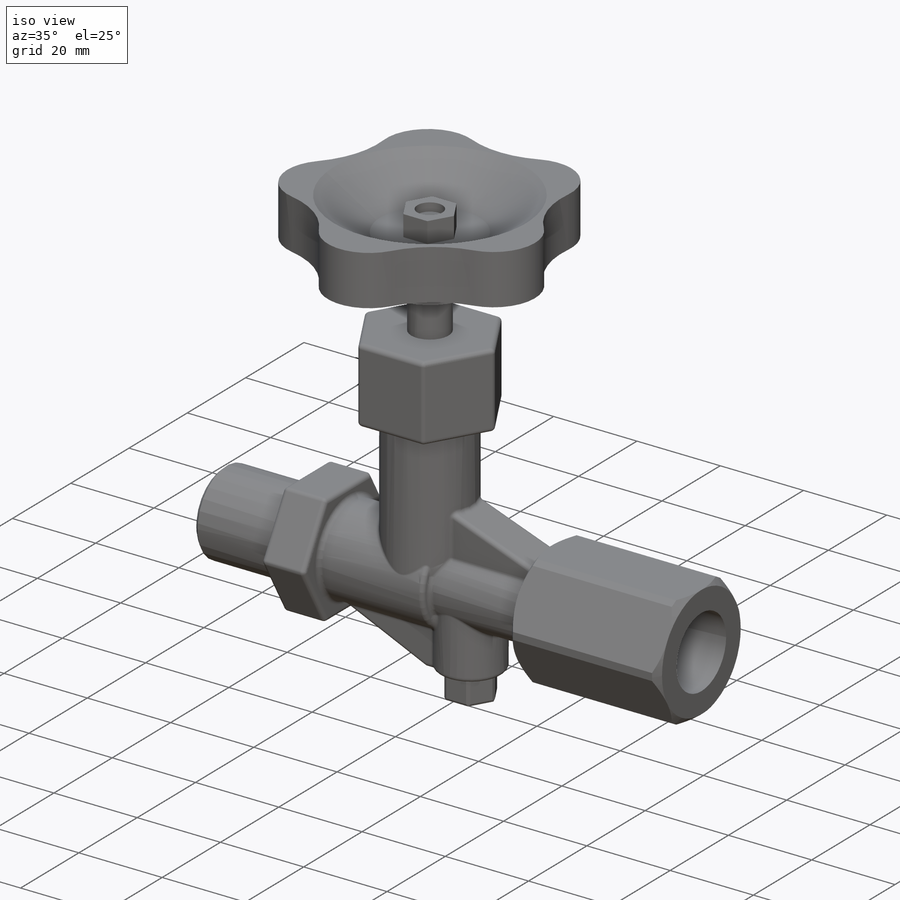
[diagram: iso view]
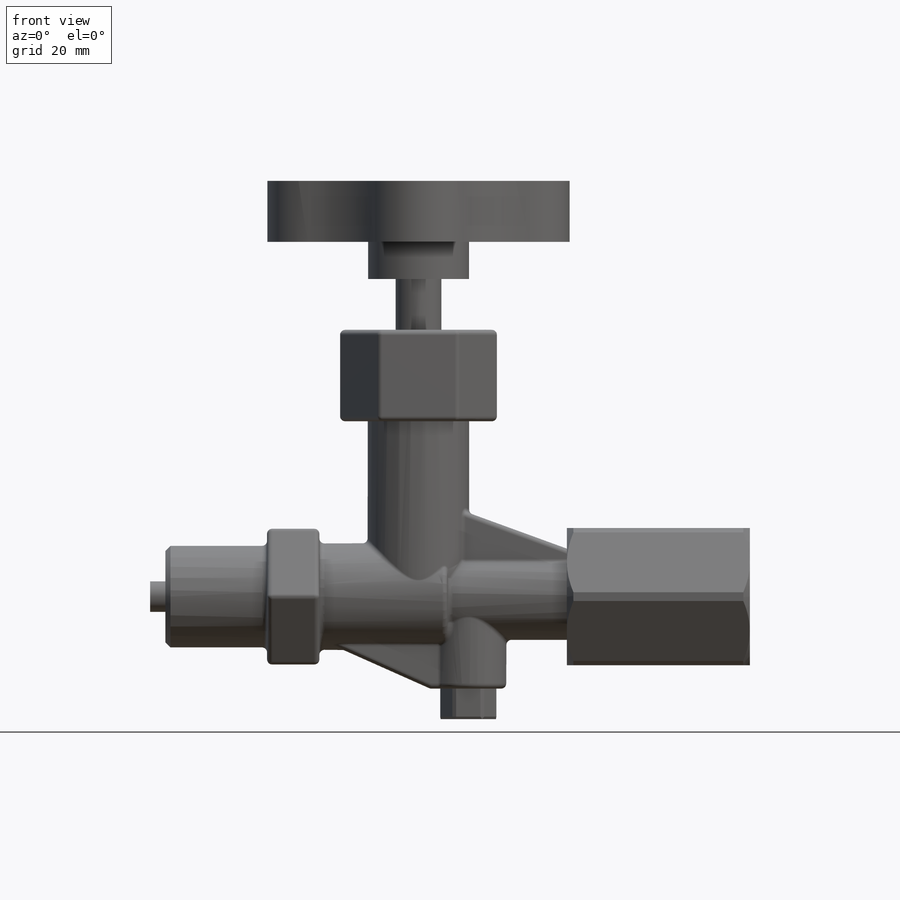
[diagram: front view]
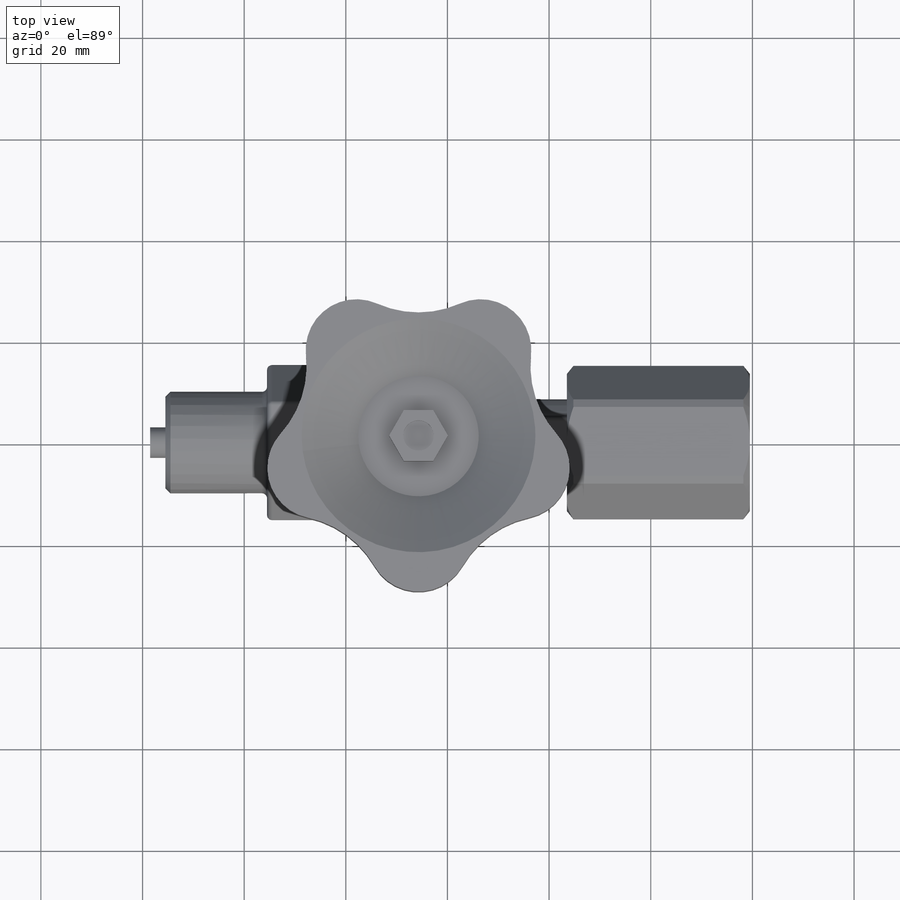
[diagram: top view]
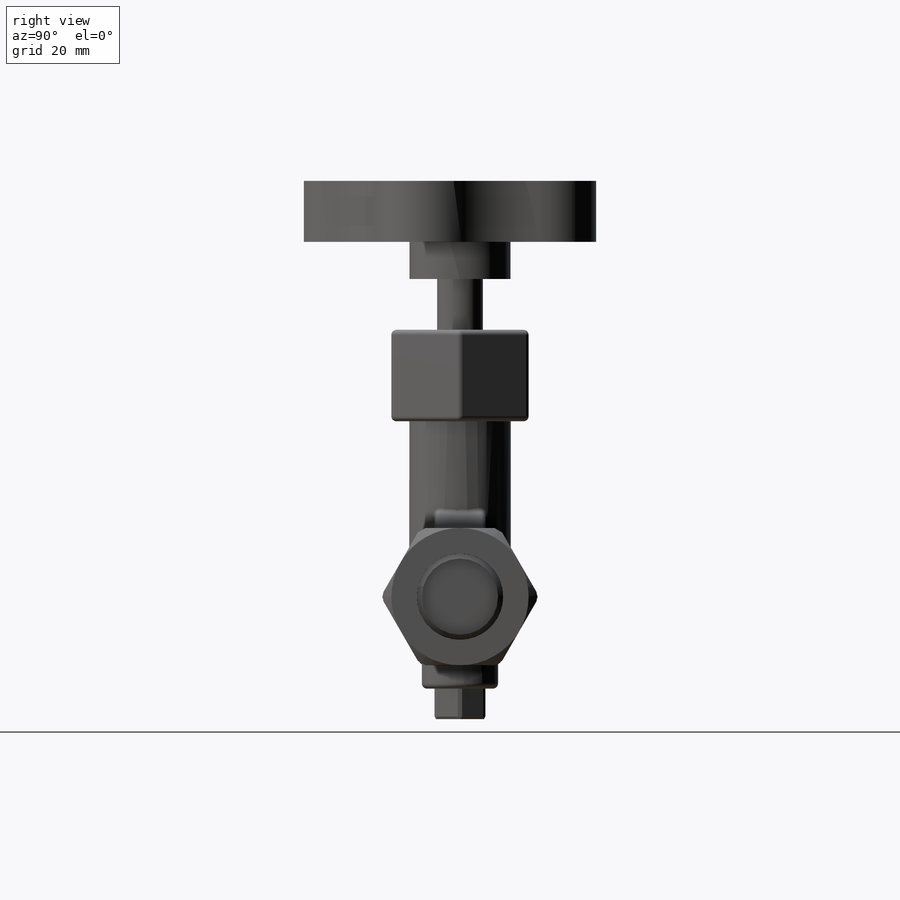
[diagram: right view]
SOLIDWORKS PART (.sldprt)
format: sldprt  version: not decoded by parser v0  size: 860,672 bytes
history: native  units: mm
features: sketch x18, extrude x10, revolve x5, plane x4, cut_revolve x3, cut_extrude x2, pattern_circular x2, material x1, fillet x1, chamfer x1 (+8 scaffold rows collapsed)
feature tree (55):
  scaffold x8  (default folders/planes/origin — collapsed)
  material  "Materiál <není určen>"
  plane  "Přední rovina"
  plane  "Horní rovina"
  plane  "Pravá rovina"
  sketch  "Skica1"  dims[D1=43.5mm D2=17.0mm]
  revolve  "Rotovat1"  Angle=360deg
  sketch  "Skica2"  dims[D1=21.0mm D2=79.0mm]
  revolve  "Rotovat2"  Angle=360deg
  sketch  "Skica3"  dims[D1=26.7mm]
  extrude  "Přidat vysunutím1"  Depth=10.3mm
  sketch  "Skica4"  dims[D1=20.0mm]
  extrude  "Přidat vysunutím2"  Depth=20mm
  sketch  "Skica5"  dims[D1=20.0mm D2=9.5mm D3=52.4mm]
  revolve  "Rotovat3"  Angle=360deg
  sketch  "Skica6"  dims[D1=31.9mm D2=15.0mm D3=70.5mm]
  revolve  "Rotovat4"  Angle=360deg
  sketch  "Skica8"  dims[c1.D1=16.9mm c1.D2=3.0mm c2.D1=3.0mm c3.D1=24.0deg]
  extrude  "Přidat vysunutím3"  Depth=10mm
  sketch  "Skica9"  dims[c1.D1=~33.755863mm c2.D1=20.0deg c2.D2=18.0mm]
  extrude  "Přidat vysunutím4"  Depth=10mm
  fillet  "Zaoblit1"  Radius=1mm
  chamfer  "Zkosení1"  Distance=1mm Angle=45deg
  sketch  "Skica10"  dims[D1=27.0mm]
  extrude  "Přidat vysunutím5"  Depth=18mm
  sketch  "Skica11"  dims[D1=9.0mm]
  extrude  "Přidat vysunutím6"  Depth=10mm
  sketch  "Skica12"  dims[D1=61.5mm D2=46.0mm D3=23.7mm D4=8.0mm D5=19.3mm D6=12.0mm D7=19.9mm]
  revolve  "Rotovat5"  Angle=360deg
  sketch  "Skica13"  dims[c1.D1=40.0mm c1.D3=20.0mm c1.D2=~19.06587mm c2.D2=72.0deg]
  cut_extrude  "Odebrat vysunutím1"  [1 undecoded]
  pattern_circular  "Kruhové pole1"  Count=5 Angle=72deg
  sketch  "Skica14"  dims[D1=10.0mm]
  extrude  "Přidat vysunutím7"  Depth=5mm
  sketch  "Skica15"  dims[D1=6.0mm]
  cut_extrude  "Odebrat vysunutím2"  Depth=2mm
  pattern_circular  "Zaoblit2"  [2 undecoded]
  plane  "Rovina1"  Offset=16mm
  sketch  "Skica17"  dims[D1=27.0mm D2=~1.426696mm]
  extrude  "Přidat vysunutím8"  Depth=36mm
  sketch  "Skica18"  dims[D1=2.5mm D2=2.0mm]
  cut_revolve  "Odebrat rotací1"  Angle=360deg
  cut_revolve  "Zkosení2"  Angle=30deg
  sketch  "Skica19"  dims[D1=10.0mm]
  extrude  "Přidat vysunutím9"  Depth=6mm
  cut_revolve  "Zkosení3"  Angle=30deg
  sketch  "Skica20"  dims[D1=6.0mm D2=3.5mm]
  extrude  "Přidat vysunutím10"  Depth=3mm
decode coverage: 40 of 42 modeling features carry decoded parameters
note: ~ marks probable driven/reference dimensions
note: 3 parameter values undecoded
note: suppression state not decoded; provenance and decode notes live in map.json
